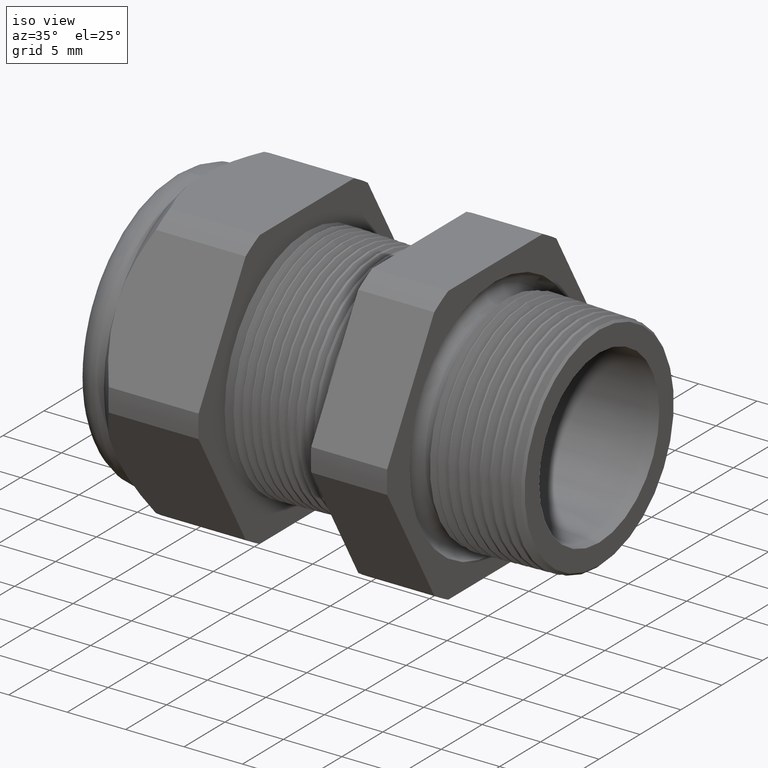
[diagram: clean part render]
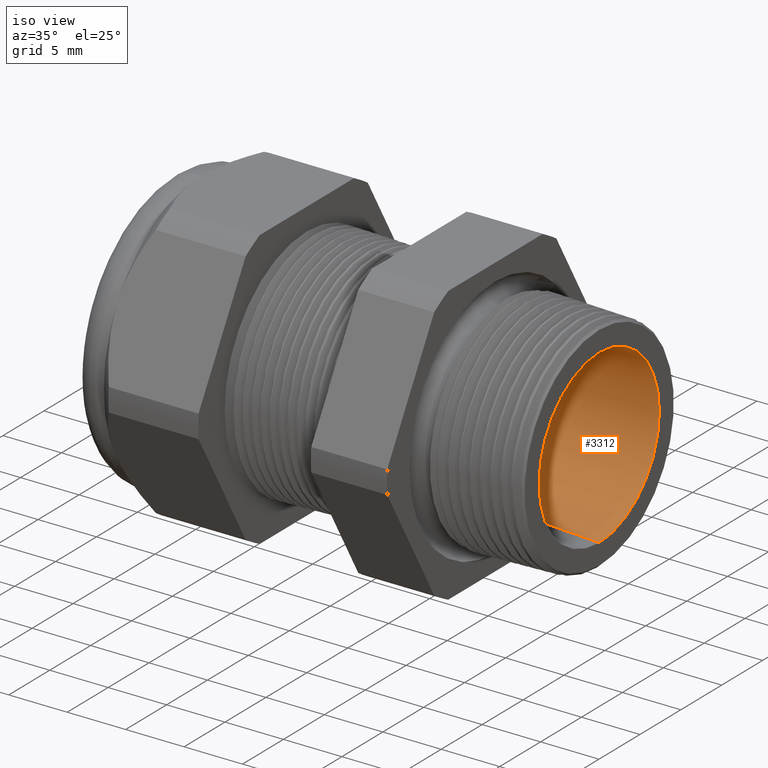
[diagram: same view with one face highlighted and labeled with its STEP entity id]
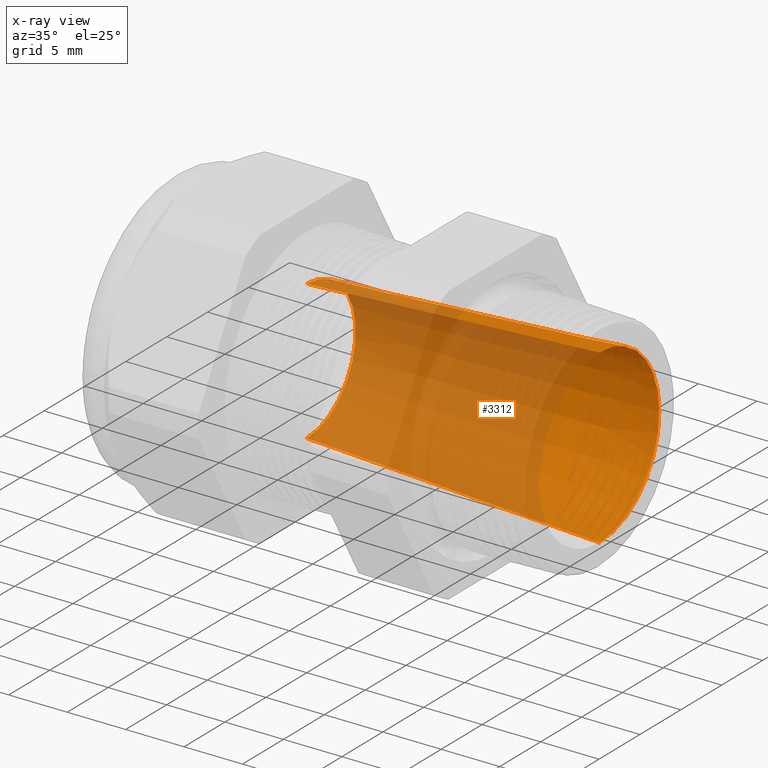
[diagram: x-ray of the same camera — body ghosted, the highlighted face saturated]
A machine part, iso view. The second image highlights one B-rep face of the part: STEP entity #3312.
The next image is the same camera in x-ray: the body ghosted, the highlighted face saturated — about 67% of this face is hidden behind the body in this view.
In plain terms, the highlighted conical surface has half-angle 3.148 deg.
Its self-contained STEP definition (entity closure, byte-faithful):
#1167 = DIRECTION ( 'NONE',  ( 0.0000000000000000000, 0.0000000000000000000, -1.000000000000000000 ) ) ;
#1168 = DIRECTION ( 'NONE',  ( 1.000000000000000000, 0.0000000000000000000, 0.0000000000000000000 ) ) ;
#1169 = CARTESIAN_POINT ( 'NONE',  ( -0.9454330708661420300, 0.0000000000000000000, 0.0000000000000000000 ) ) ;
#1170 = AXIS2_PLACEMENT_3D ( 'NONE', #1169, #1168, #1167 ) ;
#1171 = CIRCLE ( 'NONE', #1170, 0.2350000000000000100 ) ;
#1191 = DIRECTION ( 'NONE',  ( 0.0000000000000000000, 0.0000000000000000000, -1.000000000000000000 ) ) ;
#1192 = DIRECTION ( 'NONE',  ( 1.000000000000000000, 0.0000000000000000000, 0.0000000000000000000 ) ) ;
#1193 = CARTESIAN_POINT ( 'NONE',  ( -0.9454330708661420300, 0.0000000000000000000, 0.0000000000000000000 ) ) ;
#1194 = AXIS2_PLACEMENT_3D ( 'NONE', #1193, #1192, #1191 ) ;
#1196 = CONICAL_SURFACE ( 'NONE', #1194, 0.2350000000000000100, 0.05494131151472637900 ) ;
#1197 = FACE_OUTER_BOUND ( 'NONE', #3313, .T. ) ;
#1198 = DIRECTION ( 'NONE',  ( 0.0000000000000000000, 0.0000000000000000000, -1.000000000000000000 ) ) ;
#1199 = DIRECTION ( 'NONE',  ( 1.000000000000000000, 0.0000000000000000000, 0.0000000000000000000 ) ) ;
#1200 = CARTESIAN_POINT ( 'NONE',  ( 0.03999999999999998000, 0.0000000000000000000, 0.0000000000000000000 ) ) ;
#1201 = AXIS2_PLACEMENT_3D ( 'NONE', #1200, #1199, #1198 ) ;
#1202 = CIRCLE ( 'NONE', #1201, 0.2891955268946231900 ) ;
#2331 = VERTEX_POINT ( 'NONE', #4278 ) ;
#2334 = VERTEX_POINT ( 'NONE', #4272 ) ;
#2387 = EDGE_CURVE ( 'NONE', #2331, #2388, #4422, .T. ) ;
#2388 = VERTEX_POINT ( 'NONE', #4418 ) ;
#2391 = VERTEX_POINT ( 'NONE', #4412 ) ;
#2393 = EDGE_CURVE ( 'NONE', #2334, #2391, #4411, .T. ) ;
#3289 = ORIENTED_EDGE ( 'NONE', *, *, #2387, .F. ) ;
#3290 = ORIENTED_EDGE ( 'NONE', *, *, #3291, .F. ) ;
#3291 = EDGE_CURVE ( 'NONE', #2334, #2331, #1171, .T. ) ;
#3292 = ORIENTED_EDGE ( 'NONE', *, *, #2393, .T. ) ;
#3293 = ORIENTED_EDGE ( 'NONE', *, *, #3310, .T. ) ;
#3310 = EDGE_CURVE ( 'NONE', #2391, #2388, #1202, .T. ) ;
#3312 = ADVANCED_FACE ( 'NONE', ( #1197 ), #1196, .F. ) ;
#3313 = EDGE_LOOP ( 'NONE', ( #3289, #3290, #3292, #3293 ) ) ;
#4272 = CARTESIAN_POINT ( 'NONE',  ( -0.9454330708661420300, 0.0000000000000000000, -0.2350000000000000100 ) ) ;
#4278 = CARTESIAN_POINT ( 'NONE',  ( -0.9454330708661420300, 3.209771870694303300E-017, 0.2350000000000000100 ) ) ;
#4408 = DIRECTION ( 'NONE',  ( 0.9984911057575849300, 0.0000000000000000000, -0.05491367519111591700 ) ) ;
#4409 = VECTOR ( 'NONE', #4408, 39.37007874015748100 ) ;
#4410 = CARTESIAN_POINT ( 'NONE',  ( -0.9454330708661420300, 0.0000000000000000000, -0.2350000000000000100 ) ) ;
#4411 = LINE ( 'NONE', #4410, #4409 ) ;
#4412 = CARTESIAN_POINT ( 'NONE',  ( 0.03999999999999998000, 0.0000000000000000000, -0.2891955268946231900 ) ) ;
#4418 = CARTESIAN_POINT ( 'NONE',  ( 0.03999999999999998000, 3.541623763392326200E-017, 0.2891955268946231900 ) ) ;
#4419 = DIRECTION ( 'NONE',  ( 0.9984911057575849300, 6.724985655221751600E-018, 0.05491367519111591700 ) ) ;
#4420 = VECTOR ( 'NONE', #4419, 39.37007874015748100 ) ;
#4421 = CARTESIAN_POINT ( 'NONE',  ( -0.9454330708661420300, 2.877919977996280400E-017, 0.2350000000000000100 ) ) ;
#4422 = LINE ( 'NONE', #4421, #4420 ) ;